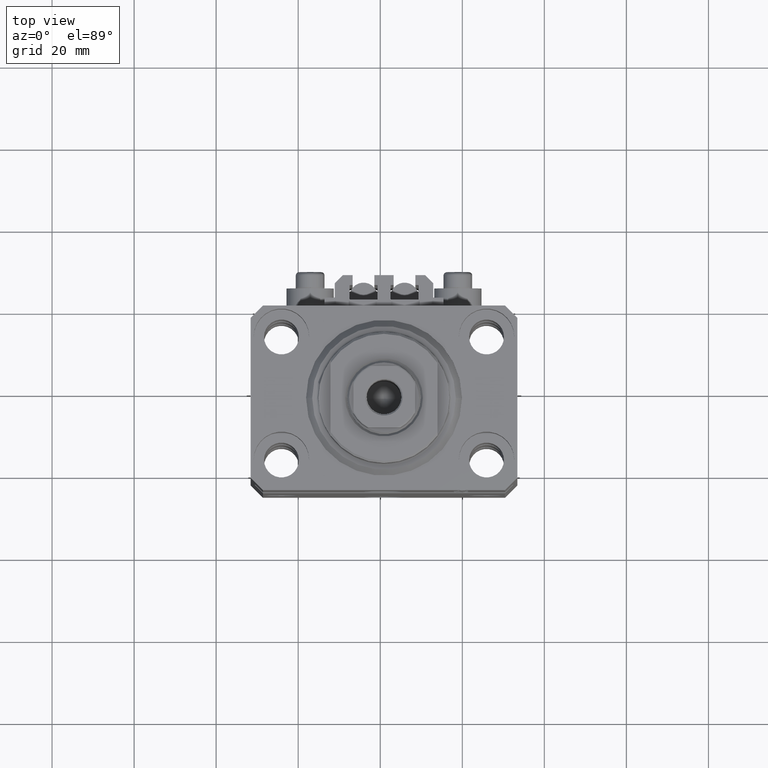
[diagram: clean part render]
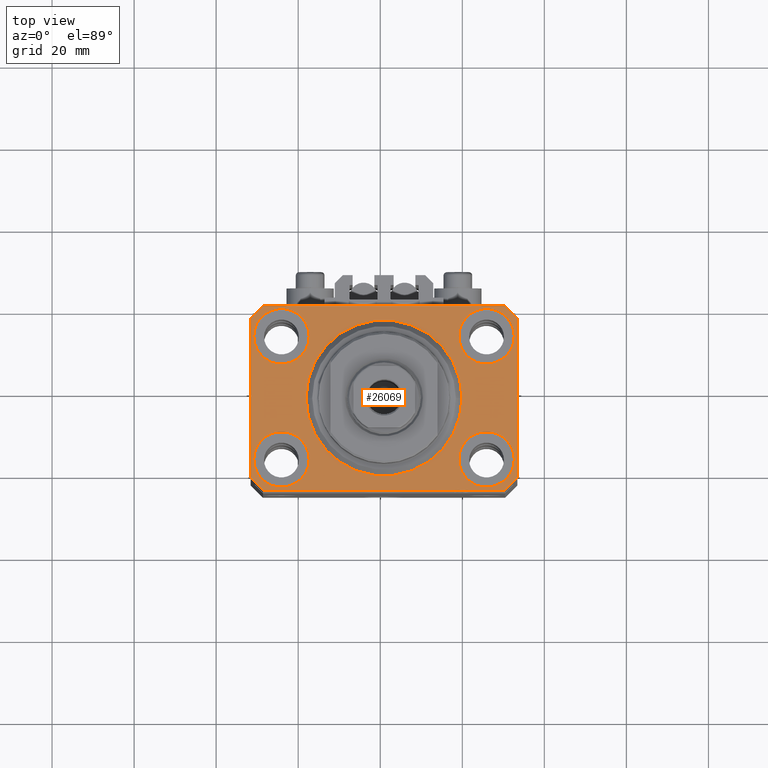
[diagram: same view with one face highlighted and labeled with its STEP entity id]
A machine part, top view. The second image highlights one B-rep face of the part: STEP entity #26069.
In plain terms, the highlighted planar face has unit normal (0, 0, 1).
Its self-contained STEP definition (entity closure, byte-faithful):
#1588 = DIRECTION ( 'NONE',  ( 1.000000000000000000, 1.176083712526788232E-16, 0.000000000000000000 ) ) ;
#2014 = CARTESIAN_POINT ( 'NONE',  ( 31.74999999995845101, 15.00000000000000888, 0.000000000000000000 ) ) ;
#2590 = ORIENTED_EDGE ( 'NONE', *, *, #46043, .T. ) ;
#3433 = VERTEX_POINT ( 'NONE', #43285 ) ;
#3609 = VECTOR ( 'NONE', #45226, 1000.000000000000000 ) ;
#3813 = ORIENTED_EDGE ( 'NONE', *, *, #9652, .T. ) ;
#4196 = FACE_BOUND ( 'NONE', #25670, .T. ) ;
#4439 = DIRECTION ( 'NONE',  ( 0.000000000000000000, 0.000000000000000000, 1.000000000000000000 ) ) ;
#4592 = CIRCLE ( 'NONE', #13981, 6.750000000022533087 ) ;
#5110 = DIRECTION ( 'NONE',  ( 0.000000000000000000, 0.000000000000000000, 1.000000000000000000 ) ) ;
#5170 = FACE_BOUND ( 'NONE', #25424, .T. ) ;
#5481 = ORIENTED_EDGE ( 'NONE', *, *, #24026, .T. ) ;
#5584 = EDGE_CURVE ( 'NONE', #6685, #6061, #45853, .T. ) ;
#6061 = VERTEX_POINT ( 'NONE', #35654 ) ;
#6685 = VERTEX_POINT ( 'NONE', #9702 ) ;
#7343 = CARTESIAN_POINT ( 'NONE',  ( -25.00000000000000355, 15.00000000000000000, 0.000000000000000000 ) ) ;
#7777 = VERTEX_POINT ( 'NONE', #18838 ) ;
#7910 = EDGE_CURVE ( 'NONE', #9761, #21372, #37623, .T. ) ;
#8247 = CARTESIAN_POINT ( 'NONE',  ( 18.25000000004154543, 15.00000000000000888, 0.000000000000000000 ) ) ;
#8440 = EDGE_CURVE ( 'NONE', #7777, #41077, #45157, .T. ) ;
#8726 = ORIENTED_EDGE ( 'NONE', *, *, #9742, .F. ) ;
#9305 = CIRCLE ( 'NONE', #33566, 6.749999999958452790 ) ;
#9515 = DIRECTION ( 'NONE',  ( 0.000000000000000000, 0.000000000000000000, 1.000000000000000000 ) ) ;
#9652 = EDGE_CURVE ( 'NONE', #9940, #31468, #32082, .T. ) ;
#9702 = CARTESIAN_POINT ( 'NONE',  ( -31.75000000004154899, -15.00000000000000000, 0.000000000000000000 ) ) ;
#9742 = EDGE_CURVE ( 'NONE', #3433, #46284, #38134, .T. ) ;
#9761 = VERTEX_POINT ( 'NONE', #36512 ) ;
#9940 = VERTEX_POINT ( 'NONE', #47498 ) ;
#10018 = DIRECTION ( 'NONE',  ( -0.7071067811865474617, -0.7071067811865474617, 0.000000000000000000 ) ) ;
#10057 = CARTESIAN_POINT ( 'NONE',  ( 25.00000000000000355, -15.00000000000000000, 0.000000000000000000 ) ) ;
#10229 = DIRECTION ( 'NONE',  ( 1.334402673828349134E-14, 1.000000000000000000, 0.000000000000000000 ) ) ;
#10357 = LINE ( 'NONE', #22109, #13644 ) ;
#10408 = AXIS2_PLACEMENT_3D ( 'NONE', #10057, #18144, #21573 ) ;
#10463 = EDGE_CURVE ( 'NONE', #42592, #13976, #21694, .T. ) ;
#10980 = EDGE_CURVE ( 'NONE', #6061, #6685, #13079, .T. ) ;
#11136 = ORIENTED_EDGE ( 'NONE', *, *, #8440, .F. ) ;
#11199 = CARTESIAN_POINT ( 'NONE',  ( -25.00000000000000355, -15.00000000000000000, 0.000000000000000000 ) ) ;
#11321 = DIRECTION ( 'NONE',  ( 1.000000000000000000, 0.000000000000000000, 0.000000000000000000 ) ) ;
#12328 = DIRECTION ( 'NONE',  ( 1.000000000000000000, 0.000000000000000000, 0.000000000000000000 ) ) ;
#12507 = FACE_BOUND ( 'NONE', #30609, .T. ) ;
#13010 = AXIS2_PLACEMENT_3D ( 'NONE', #7343, #22285, #36559 ) ;
#13079 = CIRCLE ( 'NONE', #31889, 6.750000000041541881 ) ;
#13644 = VECTOR ( 'NONE', #14269, 1000.000000000000000 ) ;
#13976 = VERTEX_POINT ( 'NONE', #8247 ) ;
#13981 = AXIS2_PLACEMENT_3D ( 'NONE', #40995, #18166, #33135 ) ;
#14138 = ORIENTED_EDGE ( 'NONE', *, *, #31512, .F. ) ;
#14269 = DIRECTION ( 'NONE',  ( -0.7071067811865352493, 0.7071067811865597852, 0.000000000000000000 ) ) ;
#14391 = DIRECTION ( 'NONE',  ( 1.000000000000000000, 0.000000000000000000, 0.000000000000000000 ) ) ;
#14442 = EDGE_LOOP ( 'NONE', ( #21926, #33488, #2590, #3813, #5481, #47012, #41390, #43075 ) ) ;
#15436 = ORIENTED_EDGE ( 'NONE', *, *, #10980, .F. ) ;
#15461 = DIRECTION ( 'NONE',  ( 1.000000000000000000, 0.000000000000000000, -0.000000000000000000 ) ) ;
#16281 = LINE ( 'NONE', #46974, #36960 ) ;
#16744 = DIRECTION ( 'NONE',  ( 0.000000000000000000, 0.000000000000000000, 1.000000000000000000 ) ) ;
#17085 = CARTESIAN_POINT ( 'NONE',  ( 0.000000000000000000, 0.000000000000000000, 0.000000000000000000 ) ) ;
#17105 = CARTESIAN_POINT ( 'NONE',  ( -32.49999999999650413, -19.49999999999949907, 0.000000000000000000 ) ) ;
#17548 = VECTOR ( 'NONE', #10229, 1000.000000000000000 ) ;
#17811 = AXIS2_PLACEMENT_3D ( 'NONE', #23728, #5110, #23479 ) ;
#17889 = EDGE_LOOP ( 'NONE', ( #8726, #45547 ) ) ;
#18142 = CARTESIAN_POINT ( 'NONE',  ( 31.74999999997746869, -15.00000000000000000, 0.000000000000000000 ) ) ;
#18144 = DIRECTION ( 'NONE',  ( 0.000000000000000000, 0.000000000000000000, 1.000000000000000000 ) ) ;
#18166 = DIRECTION ( 'NONE',  ( 0.000000000000000000, 0.000000000000000000, 1.000000000000000000 ) ) ;
#18823 = CARTESIAN_POINT ( 'NONE',  ( -29.49999999999650413, -22.49999999999949907, 0.000000000000000000 ) ) ;
#18838 = CARTESIAN_POINT ( 'NONE',  ( -18.24999999997747224, 15.00000000000000000, 0.000000000000000000 ) ) ;
#19146 = CARTESIAN_POINT ( 'NONE',  ( 0.000000000000000000, 0.000000000000000000, 0.000000000000000000 ) ) ;
#19532 = DIRECTION ( 'NONE',  ( 0.000000000000000000, 0.000000000000000000, 1.000000000000000000 ) ) ;
#19869 = PLANE ( 'NONE',  #40066 ) ;
#20007 = LINE ( 'NONE', #46532, #37125 ) ;
#21372 = VERTEX_POINT ( 'NONE', #31526 ) ;
#21500 = CARTESIAN_POINT ( 'NONE',  ( 32.49999999999651124, -19.49999999999949196, 0.000000000000000000 ) ) ;
#21528 = AXIS2_PLACEMENT_3D ( 'NONE', #11199, #29349, #14391 ) ;
#21573 = DIRECTION ( 'NONE',  ( 1.000000000000000000, 0.000000000000000000, 0.000000000000000000 ) ) ;
#21694 = CIRCLE ( 'NONE', #17811, 6.749999999958452790 ) ;
#21926 = ORIENTED_EDGE ( 'NONE', *, *, #7910, .T. ) ;
#22109 = CARTESIAN_POINT ( 'NONE',  ( 32.49999999999702993, 19.49999999999945999, 0.000000000000000000 ) ) ;
#22258 = LINE ( 'NONE', #33550, #40904 ) ;
#22285 = DIRECTION ( 'NONE',  ( 0.000000000000000000, 0.000000000000000000, 1.000000000000000000 ) ) ;
#22822 = CIRCLE ( 'NONE', #28291, 6.749999999977465137 ) ;
#23479 = DIRECTION ( 'NONE',  ( 1.000000000000000000, 0.000000000000000000, 0.000000000000000000 ) ) ;
#23728 = CARTESIAN_POINT ( 'NONE',  ( 24.99999999999999645, 15.00000000000000888, 0.000000000000000000 ) ) ;
#23792 = ORIENTED_EDGE ( 'NONE', *, *, #44819, .F. ) ;
#24026 = EDGE_CURVE ( 'NONE', #31468, #42388, #16281, .T. ) ;
#25424 = EDGE_LOOP ( 'NONE', ( #15436, #38906 ) ) ;
#25670 = EDGE_LOOP ( 'NONE', ( #23792, #31450 ) ) ;
#25825 = CARTESIAN_POINT ( 'NONE',  ( 29.49999999999707967, 22.49999999999951328, 0.000000000000000000 ) ) ;
#26069 = ADVANCED_FACE ( 'NONE', ( #5170, #4196, #12507, #38053, #42465, #30909 ), #19869, .T. ) ;
#26734 = EDGE_CURVE ( 'NONE', #26849, #48199, #22822, .T. ) ;
#26849 = VERTEX_POINT ( 'NONE', #48162 ) ;
#28291 = AXIS2_PLACEMENT_3D ( 'NONE', #31224, #16744, #12328 ) ;
#29349 = DIRECTION ( 'NONE',  ( 0.000000000000000000, 0.000000000000000000, 1.000000000000000000 ) ) ;
#29360 = CARTESIAN_POINT ( 'NONE',  ( 0.000000000000000000, 0.000000000000000000, 0.000000000000000000 ) ) ;
#29814 = CARTESIAN_POINT ( 'NONE',  ( 29.49999999999650413, -22.49999999999949196, 0.000000000000000000 ) ) ;
#29961 = CARTESIAN_POINT ( 'NONE',  ( -25.00000000000000355, -15.00000000000000000, 0.000000000000000000 ) ) ;
#30609 = EDGE_LOOP ( 'NONE', ( #34912, #14138 ) ) ;
#30892 = CARTESIAN_POINT ( 'NONE',  ( -32.49999999999650413, 19.49999999999949907, 0.000000000000000000 ) ) ;
#30909 = FACE_OUTER_BOUND ( 'NONE', #14442, .T. ) ;
#31224 = CARTESIAN_POINT ( 'NONE',  ( 25.00000000000000355, -15.00000000000000000, 0.000000000000000000 ) ) ;
#31271 = EDGE_CURVE ( 'NONE', #41077, #7777, #4592, .T. ) ;
#31450 = ORIENTED_EDGE ( 'NONE', *, *, #26734, .F. ) ;
#31468 = VERTEX_POINT ( 'NONE', #18823 ) ;
#31512 = EDGE_CURVE ( 'NONE', #13976, #42592, #9305, .T. ) ;
#31526 = CARTESIAN_POINT ( 'NONE',  ( -29.49999999999650413, 22.49999999999949907, 0.000000000000000000 ) ) ;
#31889 = AXIS2_PLACEMENT_3D ( 'NONE', #29961, #4439, #11321 ) ;
#32082 = LINE ( 'NONE', #17105, #42839 ) ;
#32662 = AXIS2_PLACEMENT_3D ( 'NONE', #29360, #33296, #43879 ) ;
#32979 = VERTEX_POINT ( 'NONE', #43538 ) ;
#33135 = DIRECTION ( 'NONE',  ( 1.000000000000000000, 0.000000000000000000, 0.000000000000000000 ) ) ;
#33296 = DIRECTION ( 'NONE',  ( 0.000000000000000000, 0.000000000000000000, 1.000000000000000000 ) ) ;
#33409 = VERTEX_POINT ( 'NONE', #30892 ) ;
#33488 = ORIENTED_EDGE ( 'NONE', *, *, #39293, .T. ) ;
#33550 = CARTESIAN_POINT ( 'NONE',  ( -29.49999999999650413, 22.49999999999949907, 0.000000000000000000 ) ) ;
#33566 = AXIS2_PLACEMENT_3D ( 'NONE', #46061, #19532, #42617 ) ;
#34631 = VECTOR ( 'NONE', #47772, 1000.000000000000000 ) ;
#34912 = ORIENTED_EDGE ( 'NONE', *, *, #10463, .F. ) ;
#34934 = CARTESIAN_POINT ( 'NONE',  ( -31.75000000002253842, 15.00000000000000000, 0.000000000000000000 ) ) ;
#35654 = CARTESIAN_POINT ( 'NONE',  ( -18.24999999995846167, -15.00000000000000000, 0.000000000000000000 ) ) ;
#36512 = CARTESIAN_POINT ( 'NONE',  ( 29.49999999999707967, 22.49999999999951328, 0.000000000000000000 ) ) ;
#36559 = DIRECTION ( 'NONE',  ( 1.000000000000000000, 0.000000000000000000, 0.000000000000000000 ) ) ;
#36960 = VECTOR ( 'NONE', #1588, 1000.000000000000000 ) ;
#36973 = LINE ( 'NONE', #29814, #34631 ) ;
#37125 = VECTOR ( 'NONE', #42847, 1000.000000000000000 ) ;
#37623 = LINE ( 'NONE', #25825, #3609 ) ;
#38053 = FACE_BOUND ( 'NONE', #43840, .T. ) ;
#38134 = CIRCLE ( 'NONE', #32662, 19.00000000000000000 ) ;
#38624 = ORIENTED_EDGE ( 'NONE', *, *, #31271, .F. ) ;
#38906 = ORIENTED_EDGE ( 'NONE', *, *, #5584, .F. ) ;
#39293 = EDGE_CURVE ( 'NONE', #21372, #33409, #22258, .T. ) ;
#40066 = AXIS2_PLACEMENT_3D ( 'NONE', #19146, #41731, #15461 ) ;
#40166 = CIRCLE ( 'NONE', #46435, 19.00000000000000000 ) ;
#40904 = VECTOR ( 'NONE', #10018, 1000.000000000000114 ) ;
#40995 = CARTESIAN_POINT ( 'NONE',  ( -25.00000000000000355, 15.00000000000000000, 0.000000000000000000 ) ) ;
#41077 = VERTEX_POINT ( 'NONE', #34934 ) ;
#41390 = ORIENTED_EDGE ( 'NONE', *, *, #47532, .T. ) ;
#41731 = DIRECTION ( 'NONE',  ( 0.000000000000000000, 0.000000000000000000, 1.000000000000000000 ) ) ;
#42388 = VERTEX_POINT ( 'NONE', #46677 ) ;
#42465 = FACE_BOUND ( 'NONE', #17889, .T. ) ;
#42534 = CIRCLE ( 'NONE', #10408, 6.749999999977465137 ) ;
#42592 = VERTEX_POINT ( 'NONE', #2014 ) ;
#42617 = DIRECTION ( 'NONE',  ( 1.000000000000000000, 0.000000000000000000, 0.000000000000000000 ) ) ;
#42839 = VECTOR ( 'NONE', #43393, 1000.000000000000114 ) ;
#42847 = DIRECTION ( 'NONE',  ( 0.000000000000000000, -1.000000000000000000, 0.000000000000000000 ) ) ;
#43075 = ORIENTED_EDGE ( 'NONE', *, *, #47877, .T. ) ;
#43127 = DIRECTION ( 'NONE',  ( 1.000000000000000000, 0.000000000000000000, 0.000000000000000000 ) ) ;
#43238 = EDGE_CURVE ( 'NONE', #42388, #32979, #36973, .T. ) ;
#43285 = CARTESIAN_POINT ( 'NONE',  ( 19.00000000000000000, 0.000000000000000000, 0.000000000000000000 ) ) ;
#43393 = DIRECTION ( 'NONE',  ( 0.7071067811865474617, -0.7071067811865474617, 0.000000000000000000 ) ) ;
#43538 = CARTESIAN_POINT ( 'NONE',  ( 32.49999999999651124, -19.49999999999949196, 0.000000000000000000 ) ) ;
#43840 = EDGE_LOOP ( 'NONE', ( #11136, #38624 ) ) ;
#43879 = DIRECTION ( 'NONE',  ( 1.000000000000000000, 0.000000000000000000, 0.000000000000000000 ) ) ;
#43915 = EDGE_CURVE ( 'NONE', #46284, #3433, #40166, .T. ) ;
#44819 = EDGE_CURVE ( 'NONE', #48199, #26849, #42534, .T. ) ;
#45054 = CARTESIAN_POINT ( 'NONE',  ( -19.00000000000000000, 2.326828918379970970E-15, 0.000000000000000000 ) ) ;
#45157 = CIRCLE ( 'NONE', #13010, 6.750000000022533087 ) ;
#45226 = DIRECTION ( 'NONE',  ( -1.000000000000000000, -2.352167425053553784E-16, 0.000000000000000000 ) ) ;
#45533 = VERTEX_POINT ( 'NONE', #47382 ) ;
#45547 = ORIENTED_EDGE ( 'NONE', *, *, #43915, .F. ) ;
#45853 = CIRCLE ( 'NONE', #21528, 6.750000000041541881 ) ;
#46043 = EDGE_CURVE ( 'NONE', #33409, #9940, #20007, .T. ) ;
#46061 = CARTESIAN_POINT ( 'NONE',  ( 24.99999999999999645, 15.00000000000000888, 0.000000000000000000 ) ) ;
#46284 = VERTEX_POINT ( 'NONE', #45054 ) ;
#46435 = AXIS2_PLACEMENT_3D ( 'NONE', #17085, #9515, #43127 ) ;
#46532 = CARTESIAN_POINT ( 'NONE',  ( -32.49999999999650413, 19.49999999999949907, 0.000000000000000000 ) ) ;
#46677 = CARTESIAN_POINT ( 'NONE',  ( 29.49999999999650413, -22.49999999999949196, 0.000000000000000000 ) ) ;
#46974 = CARTESIAN_POINT ( 'NONE',  ( -29.49999999999650413, -22.49999999999949907, 0.000000000000000000 ) ) ;
#47012 = ORIENTED_EDGE ( 'NONE', *, *, #43238, .T. ) ;
#47302 = LINE ( 'NONE', #21500, #17548 ) ;
#47382 = CARTESIAN_POINT ( 'NONE',  ( 32.49999999999702993, 19.49999999999945999, 0.000000000000000000 ) ) ;
#47498 = CARTESIAN_POINT ( 'NONE',  ( -32.49999999999650413, -19.49999999999949907, 0.000000000000000000 ) ) ;
#47532 = EDGE_CURVE ( 'NONE', #32979, #45533, #47302, .T. ) ;
#47772 = DIRECTION ( 'NONE',  ( 0.7071067811865483499, 0.7071067811865466846, 0.000000000000000000 ) ) ;
#47877 = EDGE_CURVE ( 'NONE', #45533, #9761, #10357, .T. ) ;
#48162 = CARTESIAN_POINT ( 'NONE',  ( 18.25000000002253842, -15.00000000000000000, 0.000000000000000000 ) ) ;
#48199 = VERTEX_POINT ( 'NONE', #18142 ) ;